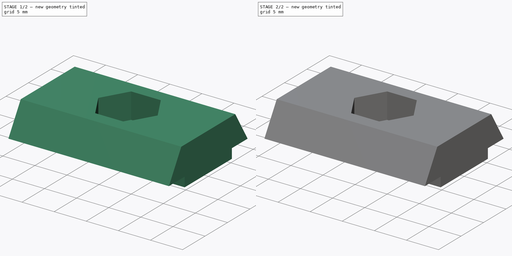
[diagram: build sequence overview — one tinted view per stage of 2, left to right]
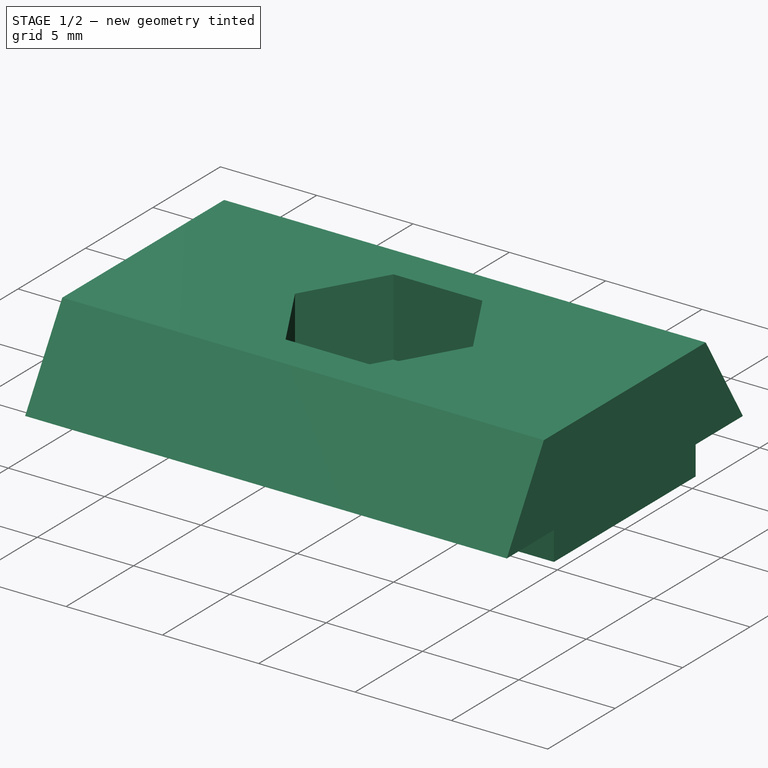
[diagram: stage 1 of 2 — iso view after this stage's code; geometry added in this stage tinted green]
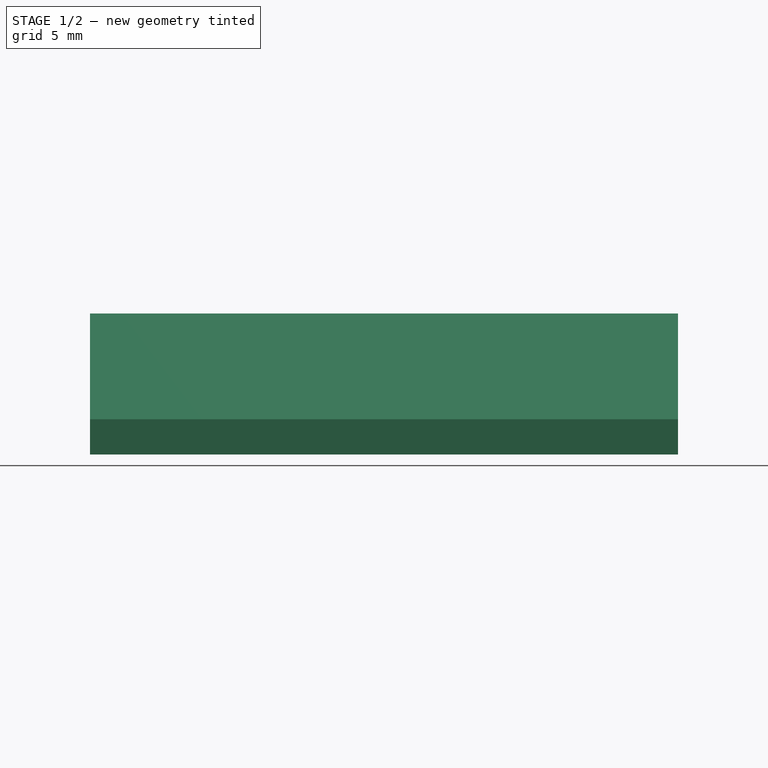
[diagram: stage 1 of 2 — front view after this stage's code; geometry added in this stage tinted green]
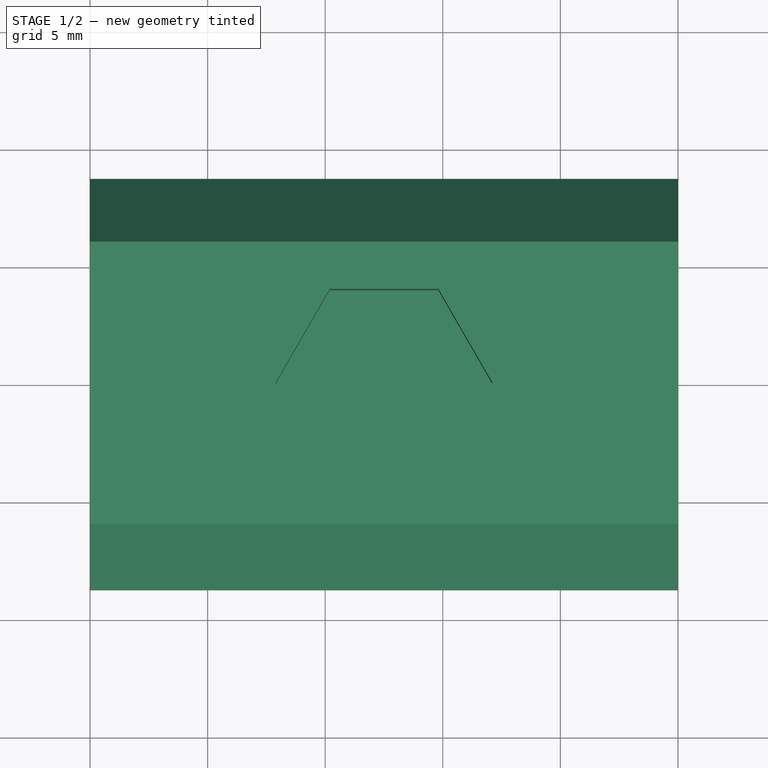
[diagram: stage 1 of 2 — top view after this stage's code; geometry added in this stage tinted green]
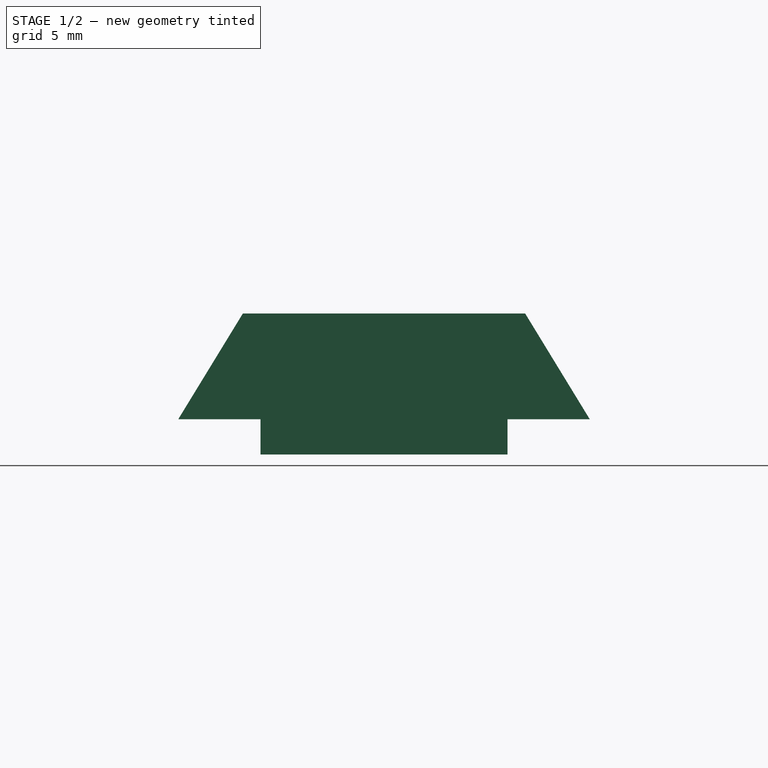
[diagram: stage 1 of 2 — right view after this stage's code; geometry added in this stage tinted green]
FCSTD DOCUMENT  (FreeCAD 0.19R24415 (Git))
Label: FlexLink M5 Nut
License: All rights reserved
LicenseURL: http://en.wikipedia.org/wiki/All_rights_reserved
objects: Sketcher::SketchObject×3, PartDesign::Pocket×2, PartDesign::Pad×1, PartDesign::Body×1
note: 10 computed .brp shape members not serialized (recipe doc carries the construction recipe); baked Part::Feature solids carry a one-line shape summary decoded from their .brp

FEATURE [Sketcher::SketchObject] Sketch
  FullyConstrained = true
  MapMode = 5
  Placement = pos=(0,0,0) rot=(0.57735,0.57735,0.57735;2.0944rad)
  Support = -> [YZ_Plane]
  sketch-geometry (10):
    g0: LineSegment StartX=-5.25 StartY=-1.5 StartZ=0 EndX=5.25 EndY=-1.5 EndZ=0
    g1: LineSegment StartX=5.25 StartY=-1.5 StartZ=0 EndX=5.25 EndY=0 EndZ=0
    g2: LineSegment StartX=5.25 StartY=0 StartZ=0 EndX=8.75 EndY=0 EndZ=0
    g3: LineSegment StartX=8.75 StartY=0 StartZ=0 EndX=6 EndY=4.5 EndZ=0
    g4: LineSegment StartX=6 StartY=4.5 StartZ=0 EndX=-6 EndY=4.5 EndZ=0
    g5: LineSegment StartX=-6 StartY=4.5 StartZ=0 EndX=-8.75 EndY=0 EndZ=0
    g6: LineSegment StartX=-8.75 StartY=0 StartZ=0 EndX=-5.25 EndY=0 EndZ=0
    g7: LineSegment StartX=-5.25 StartY=0 StartZ=0 EndX=-5.25 EndY=-1.5 EndZ=0
    g8: GeomPoint X=0 Y=-1.5 Z=0
    g9: GeomPoint X=0 Y=4.5 Z=0
  constraints (26):
    c: Horizontal(g0)
    c: Coincident(g0,g1)
    c: PointOnObject(g1,g-1)
    c: Vertical(g1)
    c: Coincident(g1,g2)
    c: PointOnObject(g2,g-1)
    c: Coincident(g2,g3)
    c: Coincident(g3,g4)
    c: Horizontal(g4)
    c: Coincident(g4,g5)
    c: PointOnObject(g5,g-1)
    c: Coincident(g5,g6)
    c: PointOnObject(g6,g-1)
    c: Coincident(g6,g7)
    c: Coincident(g7,g0)
    c: Vertical(g7)
    c: Symmetric(g4,g3,g9)
    c: Symmetric(g0,g0,g8)
    c: PointOnObject(g8,g-2)
    c: PointOnObject(g9,g-2)
    c: DistanceX(g0,g0) = 10.5
    c: DistanceY(g1,g1) = 1.5
    c: DistanceX(g2,g2) = 3.5
    c: Equal(g2,g6)
    c: DistanceX(g4,g4) = 12
    c: DistanceY(g8,g9) = 6
FEATURE [PartDesign::Pad] Pad
  Direction = (1,1,1)
  Length = 25
  Length2 = 100
  Placement = pos=(0,0,0) rot=(0.57735,0.57735,0.57735;2.0944rad)
  Profile = -> Sketch
  Type = 0
FEATURE [Sketcher::SketchObject] Sketch001
  ExternalGeometry = -> [Pad]
  FullyConstrained = true
  MapMode = 5
  Placement = pos=(-1.7e-15,2.5e-15,4.5) rot=(0,0,-1;1.5708rad)
  Support = -> [Pad]
  sketch-geometry (9):
    g0: LineSegment StartX=4 StartY=10.1906 StartZ=0 EndX=4 EndY=14.8094 EndZ=0
    g1: LineSegment StartX=4 StartY=14.8094 StartZ=0 EndX=0 EndY=17.1188 EndZ=0
    g2: LineSegment StartX=0 StartY=17.1188 StartZ=0 EndX=-4 EndY=14.8094 EndZ=0
    g3: LineSegment StartX=-4 StartY=14.8094 StartZ=0 EndX=-4 EndY=10.1906 EndZ=0
    g4: LineSegment StartX=-4 StartY=10.1906 StartZ=0 EndX=0 EndY=7.8812 EndZ=0
    g5: LineSegment StartX=0 StartY=7.8812 StartZ=0 EndX=4 EndY=10.1906 EndZ=0
    g6: Circle CenterX=0 CenterY=12.5 CenterZ=0 NormalX=0 NormalY=0 NormalZ=1 AngleXU=0 Radius=4.6188
    g7: GeomPoint X=0 Y=25 Z=0
    g8: GeomPoint X=-4 Y=12.5 Z=0
  constraints (19):
    c: Coincident(g0,g1)
    c: Coincident(g1,g2)
    c: Coincident(g2,g3)
    c: Coincident(g3,g4)
    c: Coincident(g4,g5)
    c: Coincident(g5,g0)
    c: Equal(g0, g1-g5) x5
    c: PointOnObject(g0,g6)
    c: PointOnObject(g1,g6)
    c: PointOnObject(g2,g6)
    c: PointOnObject(g3,g6)
    c: PointOnObject(g4,g6)
    c: PointOnObject(g5,g6)
    c: PointOnObject(g6,g-2)
    c: Vertical(g3)
    c: PointOnObject(g7,g-3)
    c: Symmetric(g7,g-1,g6)
    c: Symmetric(g3,g2,g8)
    c: DistanceX(g8,g6) = 4
FEATURE [PartDesign::Pocket] Pocket
  BaseFeature = -> Pad
  Length = 4
  Length2 = 100
  Placement = pos=(0,0,0) rot=(0.57735,0.57735,0.57735;2.0944rad)
  Profile = -> Sketch001
  Type = 0
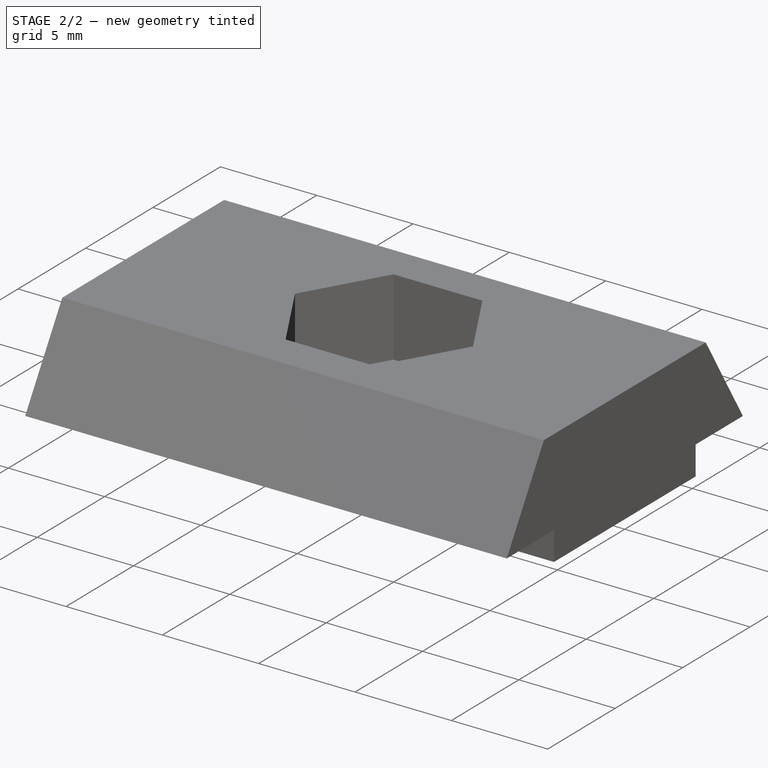
[diagram: stage 2 of 2 — iso view after this stage's code; geometry added in this stage tinted green]
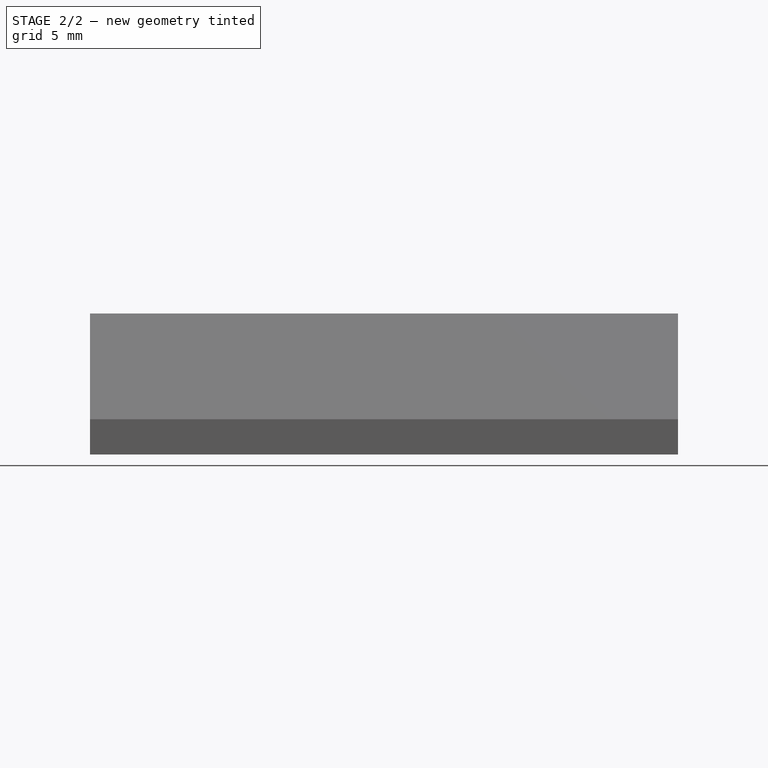
[diagram: stage 2 of 2 — front view after this stage's code; geometry added in this stage tinted green]
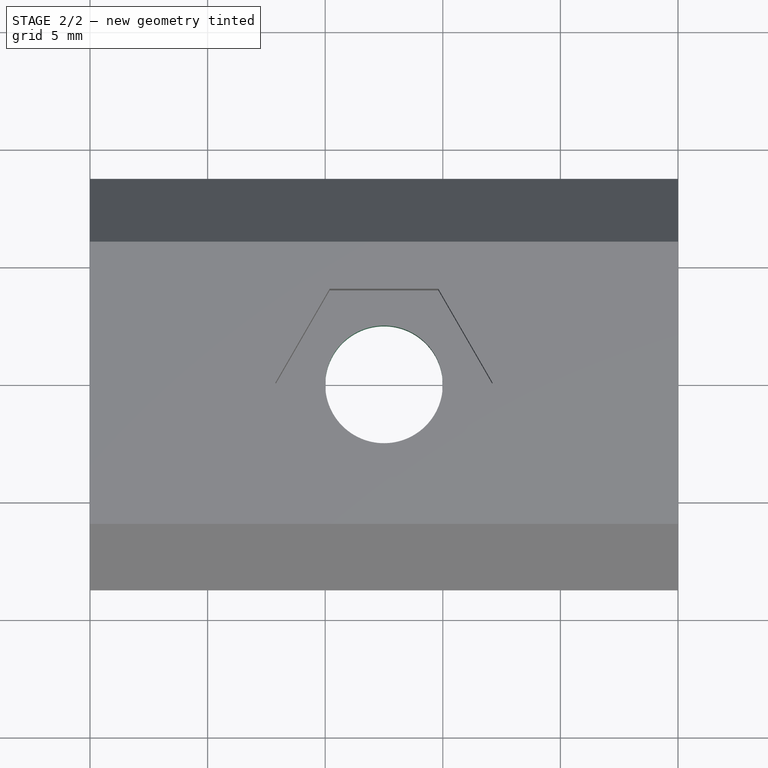
[diagram: stage 2 of 2 — top view after this stage's code; geometry added in this stage tinted green]
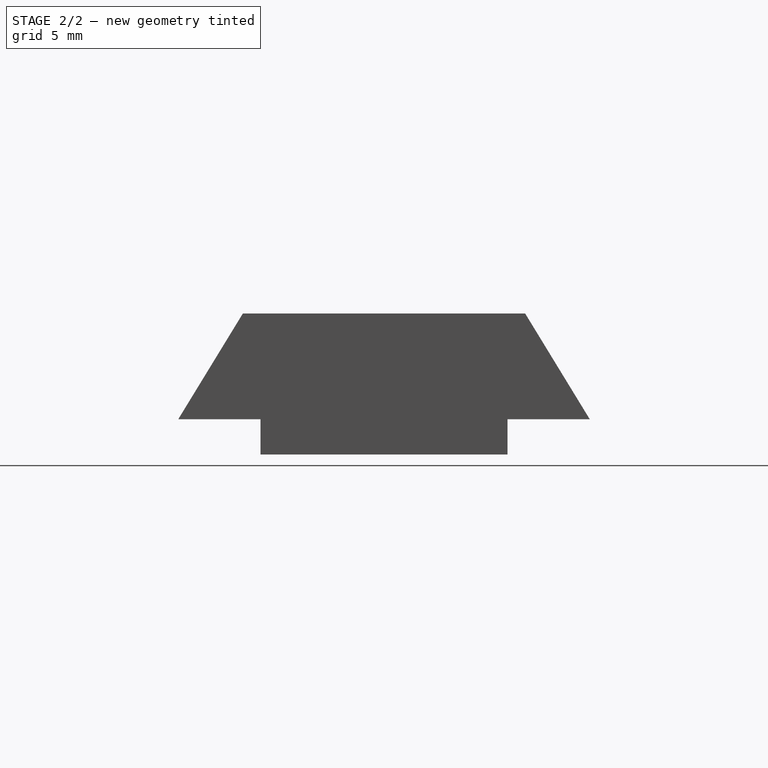
[diagram: stage 2 of 2 — right view after this stage's code; geometry added in this stage tinted green]
FEATURE [Sketcher::SketchObject] Sketch002
  ExternalGeometry = -> [Pocket]
  FullyConstrained = true
  MapMode = 5
  Placement = pos=(-4e-16,3e-16,0.5) rot=(0,0,-1;1.5708rad)
  Support = -> [Pocket]
  sketch-geometry (3):
    g0: GeomPoint X=0 Y=25 Z=0
    g1: GeomPoint X=0 Y=12.5 Z=0
    g2: Circle CenterX=0 CenterY=12.5 CenterZ=0 NormalX=0 NormalY=0 NormalZ=1 AngleXU=0 Radius=2.5
  constraints (5):
    c: PointOnObject(g0,g-2)
    c: PointOnObject(g0,g-3)
    c: Symmetric(g-1,g0,g1)
    c: Coincident(g2,g1)
    c: Diameter(g2) = 5
FEATURE [PartDesign::Pocket] Pocket001
  BaseFeature = -> Pocket
  Length = 5
  Length2 = 100
  Placement = pos=(0,0,0) rot=(0.57735,0.57735,0.57735;2.0944rad)
  Profile = -> Sketch002
  Type = 1
FEATURE [PartDesign::Body] Body
  Group = -> [Sketch,Pad,Sketch001,Pocket,Sketch002,Pocket001]
  Origin = -> Origin
  Tip = -> Pocket001
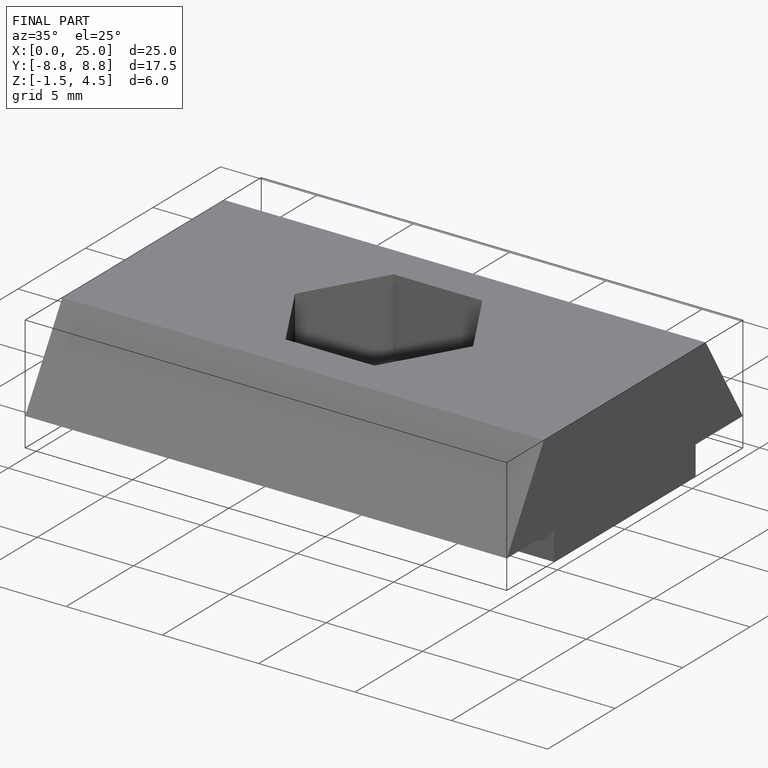
[diagram: finished part — iso view with bounding-box wireframe]
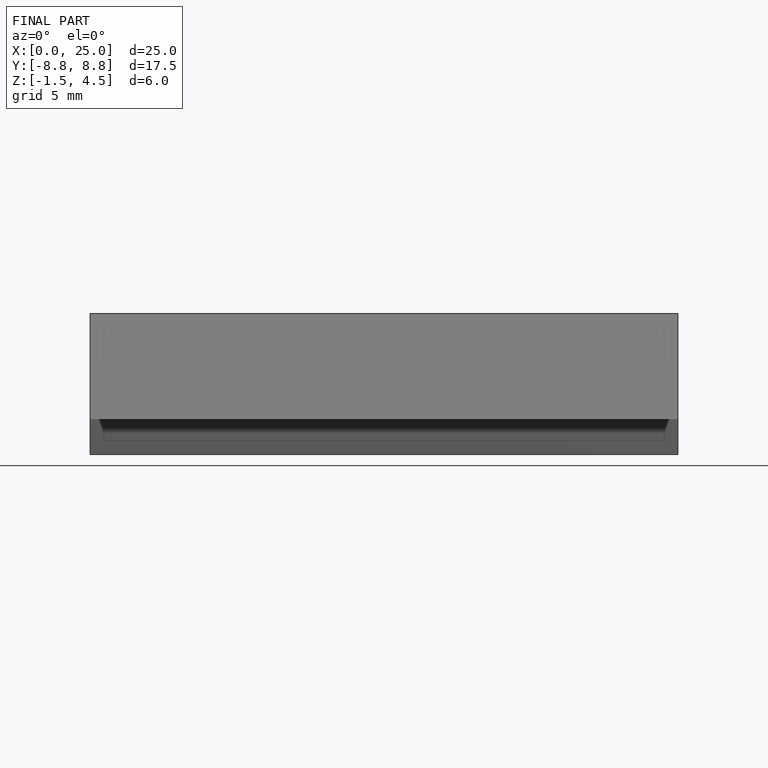
[diagram: finished part — front view with bounding-box wireframe]
